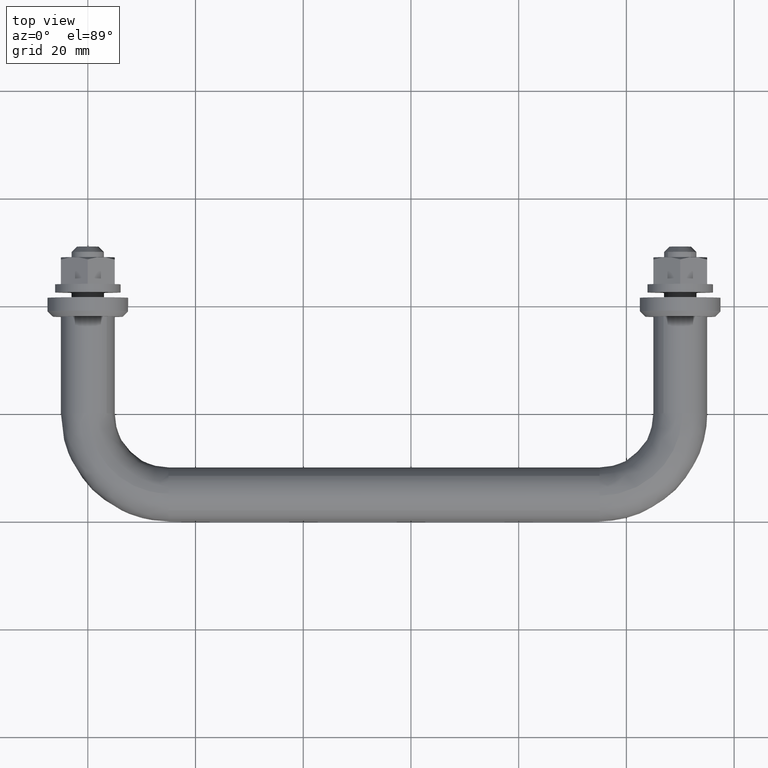
[diagram: clean part render]
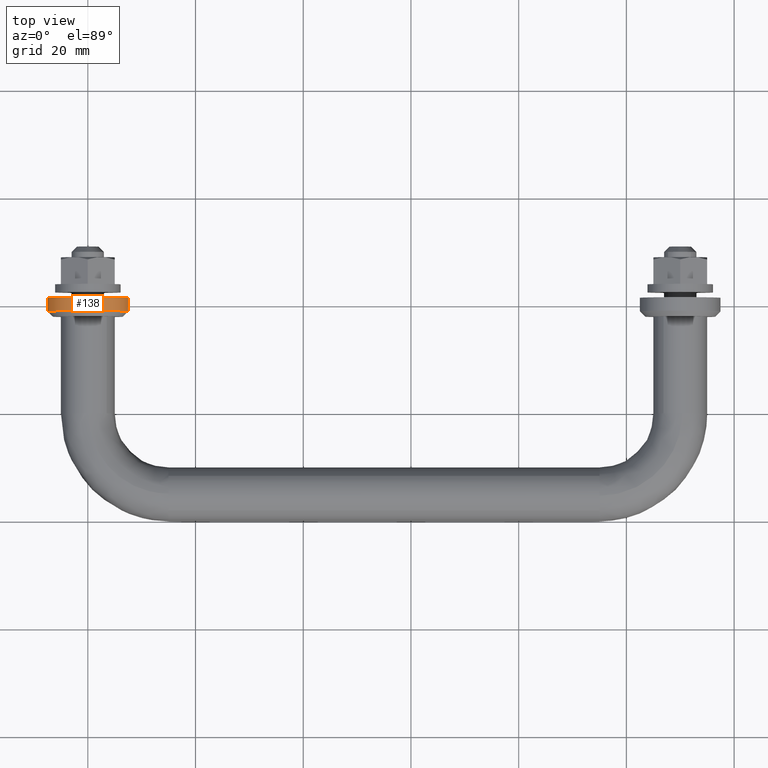
[diagram: same view with one face highlighted and labeled with its STEP entity id]
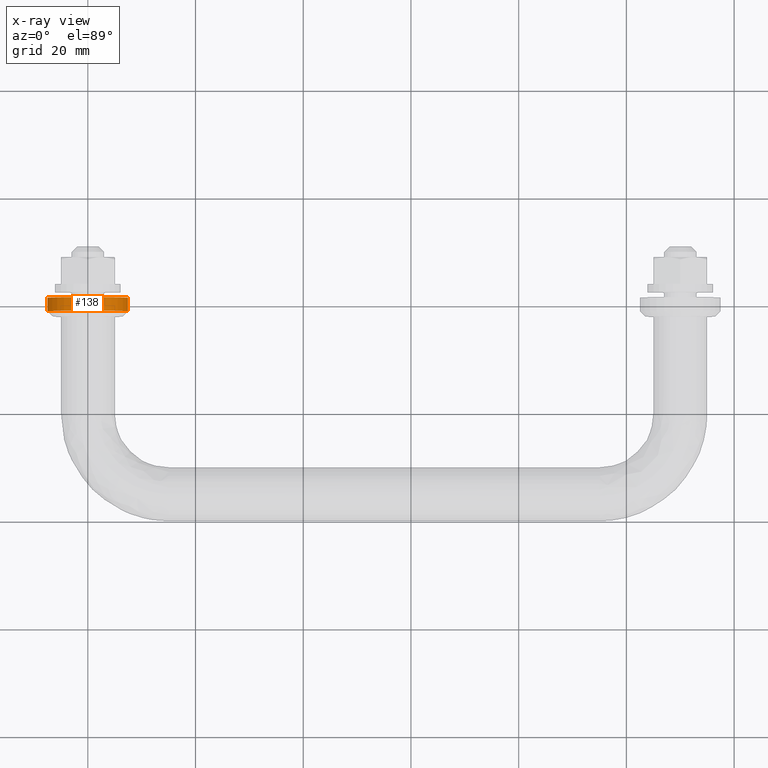
[diagram: x-ray of the same camera — body ghosted, the highlighted face saturated]
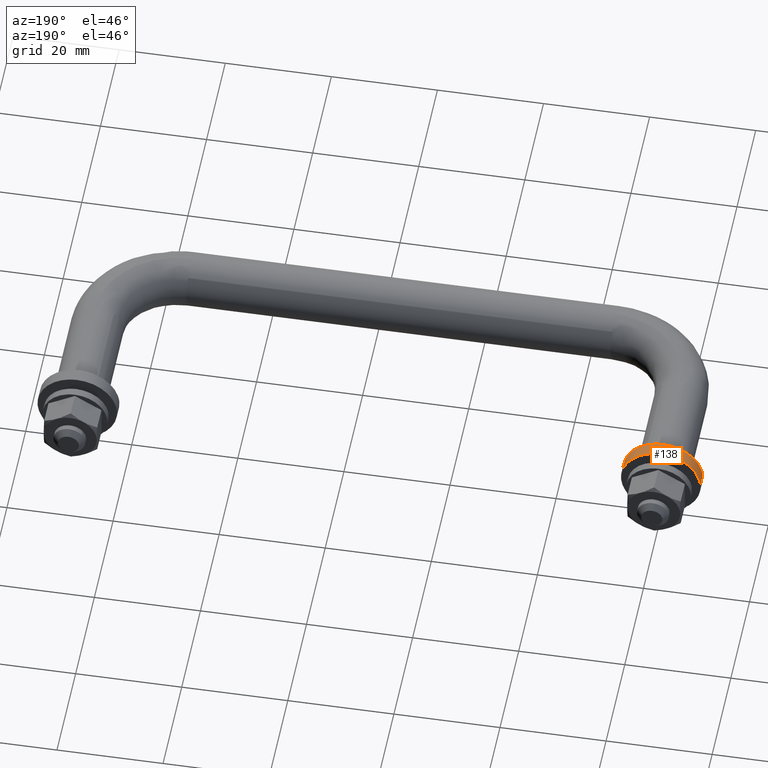
[diagram: same view with one face highlighted and labeled with its STEP entity id]
A machine part, top view. The second image highlights one B-rep face of the part: STEP entity #138.
The next image is the same camera in x-ray: the body ghosted, the highlighted face saturated — about 0% of this face is hidden behind the body in this view.
A second angle (auxiliary view) of the same face is appended — the face is thin or edge-on in the first view.
In plain terms, the highlighted face is a freeform B-spline surface patch.
Its self-contained STEP definition (entity closure, byte-faithful):
#44=CARTESIAN_POINT('',(7.451018950767853,1.562500000000231,0.855754985552703));
#45=CARTESIAN_POINT('',(6.733613644395613,1.562500000000232,7.102169699349054));
#46=CARTESIAN_POINT('',(0.457864046511428,1.562500000000231,7.486010988164000));
#47=CARTESIAN_POINT('',(-7.028146941652573,1.562500000000231,7.943875034675429));
#48=CARTESIAN_POINT('',(-7.486010988163999,1.562500000000231,0.457864046511427));
#49=CARTESIAN_POINT('',(7.451018950767853,-1.064062500000006,0.855754985552703));
#50=CARTESIAN_POINT('',(6.733613644395613,-1.064062500000006,7.102169699349054));
#51=CARTESIAN_POINT('',(0.457864046511428,-1.064062500000006,7.486010988164000));
#52=CARTESIAN_POINT('',(-7.028146941652573,-1.064062500000006,7.943875034675429));
#53=CARTESIAN_POINT('',(-7.486010988163999,-1.064062500000006,0.457864046511427));
#61=(BOUNDED_SURFACE()B_SPLINE_SURFACE(2,1,((#44,#49),(#45,#50),(#46,#51),(#47,#52),(#48,#53)),.UNSPECIFIED.,.F.,.F.,.U.)B_SPLINE_SURFACE_WITH_KNOTS((3,2,3),(2,2),(0.0,10.935238046649710,23.361644917842550),(0.0,2.626562500000238),.UNSPECIFIED.)GEOMETRIC_REPRESENTATION_ITEM()RATIONAL_B_SPLINE_SURFACE(((0.938140952186599,0.938140952186599),(0.742253967444162,0.742253967444162),(1.0,1.0),(0.707106781186548,0.707106781186548),(1.0,1.0)))REPRESENTATION_ITEM('')SURFACE());
#62=CARTESIAN_POINT('',(7.451018950737906,-1.0,0.855754985813459));
#63=VERTEX_POINT('',#62);
#64=CARTESIAN_POINT('',(4.898425E-016,-1.0,7.500000000000000));
#65=VERTEX_POINT('',#64);
#66=CARTESIAN_POINT('',(7.451018950737907,-1.0,0.855754985813459));
#67=CARTESIAN_POINT('',(6.687922542420675,-1.0,7.500000000000001));
#68=CARTESIAN_POINT('',(4.898425E-016,-1.0,7.500000000000000));
#76=(BOUNDED_CURVE()B_SPLINE_CURVE(2,(#66,#67,#68),.UNSPECIFIED.,.F.,.U.)B_SPLINE_CURVE_WITH_KNOTS((3,3),(0.269767755888454,0.500000000000000),.UNSPECIFIED.)CURVE()GEOMETRIC_REPRESENTATION_ITEM()RATIONAL_B_SPLINE_CURVE((0.957343736437298,0.730266147790099,1.0))REPRESENTATION_ITEM(''));
#77=EDGE_CURVE('',#63,#65,#76,.T.);
#78=ORIENTED_EDGE('',*,*,#77,.F.);
#79=CARTESIAN_POINT('',(7.451018950764516,1.500000000000225,0.855754985581764));
#80=VERTEX_POINT('',#79);
#81=CARTESIAN_POINT('',(7.451018950764516,1.500000000000225,0.855754985581764));
#82=CARTESIAN_POINT('',(7.451018950737906,-1.0,0.855754985813459));
#83=QUASI_UNIFORM_CURVE('',1,(#81,#82),.UNSPECIFIED.,.F.,.U.);
#84=EDGE_CURVE('',#80,#63,#83,.T.);
#85=ORIENTED_EDGE('',*,*,#84,.F.);
#86=CARTESIAN_POINT('',(4.898425E-016,1.500000000000225,7.500000000000000));
#87=VERTEX_POINT('',#86);
#88=CARTESIAN_POINT('',(7.451018950764516,1.500000000000225,0.855754985581764));
#89=CARTESIAN_POINT('',(6.687922542839340,1.500000000000225,7.499999999999998));
#90=CARTESIAN_POINT('',(4.898425E-016,1.500000000000225,7.500000000000000));
#98=(BOUNDED_CURVE()B_SPLINE_CURVE(2,(#88,#89,#90),.UNSPECIFIED.,.F.,.U.)B_SPLINE_CURVE_WITH_KNOTS((3,3),(0.269767755877929,0.500000000000000),.UNSPECIFIED.)CURVE()GEOMETRIC_REPRESENTATION_ITEM()RATIONAL_B_SPLINE_CURVE((0.957343736458059,0.730266147777769,1.0))REPRESENTATION_ITEM(''));
#99=EDGE_CURVE('',#80,#87,#98,.T.);
#100=ORIENTED_EDGE('',*,*,#99,.T.);
#101=CARTESIAN_POINT('',(-7.486010988137359,1.500000000000225,0.457864046947005));
#102=VERTEX_POINT('',#101);
#103=CARTESIAN_POINT('',(4.898425E-016,1.500000000000225,7.500000000000000));
#104=CARTESIAN_POINT('',(-7.055295500970185,1.500000000000226,7.500000000000000));
#105=CARTESIAN_POINT('',(-7.486010988137359,1.500000000000226,0.457864046947005));
#113=(BOUNDED_CURVE()B_SPLINE_CURVE(2,(#103,#104,#105),.UNSPECIFIED.,.F.,.U.)B_SPLINE_CURVE_WITH_KNOTS((3,3),(0.500000000000000,0.739332962221890),.UNSPECIFIED.)CURVE()GEOMETRIC_REPRESENTATION_ITEM()RATIONAL_B_SPLINE_CURVE((1.0,0.719603993306689,0.976072041630170))REPRESENTATION_ITEM(''));
#114=EDGE_CURVE('',#87,#102,#113,.T.);
#115=ORIENTED_EDGE('',*,*,#114,.T.);
#116=CARTESIAN_POINT('',(-7.486010988151239,-1.0,0.457864046720054));
#117=VERTEX_POINT('',#116);
#118=CARTESIAN_POINT('',(-7.486010988137359,1.500000000000225,0.457864046947005));
#119=CARTESIAN_POINT('',(-7.486010988151239,-1.0,0.457864046720054));
#120=QUASI_UNIFORM_CURVE('',1,(#118,#119),.UNSPECIFIED.,.F.,.U.);
#121=EDGE_CURVE('',#102,#117,#120,.T.);
#122=ORIENTED_EDGE('',*,*,#121,.T.);
#123=CARTESIAN_POINT('',(4.898425E-016,-1.0,7.500000000000000));
#124=CARTESIAN_POINT('',(-7.055295501595722,-1.0,7.500000000000002));
#125=CARTESIAN_POINT('',(-7.486010988151241,-1.0,0.457864046720054));
#133=(BOUNDED_CURVE()B_SPLINE_CURVE(2,(#123,#124,#125),.UNSPECIFIED.,.F.,.U.)B_SPLINE_CURVE_WITH_KNOTS((3,3),(0.500000000000000,0.739332962237160),.UNSPECIFIED.)CURVE()GEOMETRIC_REPRESENTATION_ITEM()RATIONAL_B_SPLINE_CURVE((1.0,0.719603993288799,0.976072041662896))REPRESENTATION_ITEM(''));
#134=EDGE_CURVE('',#65,#117,#133,.T.);
#135=ORIENTED_EDGE('',*,*,#134,.F.);
#136=EDGE_LOOP('',(#78,#85,#100,#115,#122,#135));
#137=FACE_OUTER_BOUND('',#136,.T.);
#138=ADVANCED_FACE('',(#137),#61,.T.);